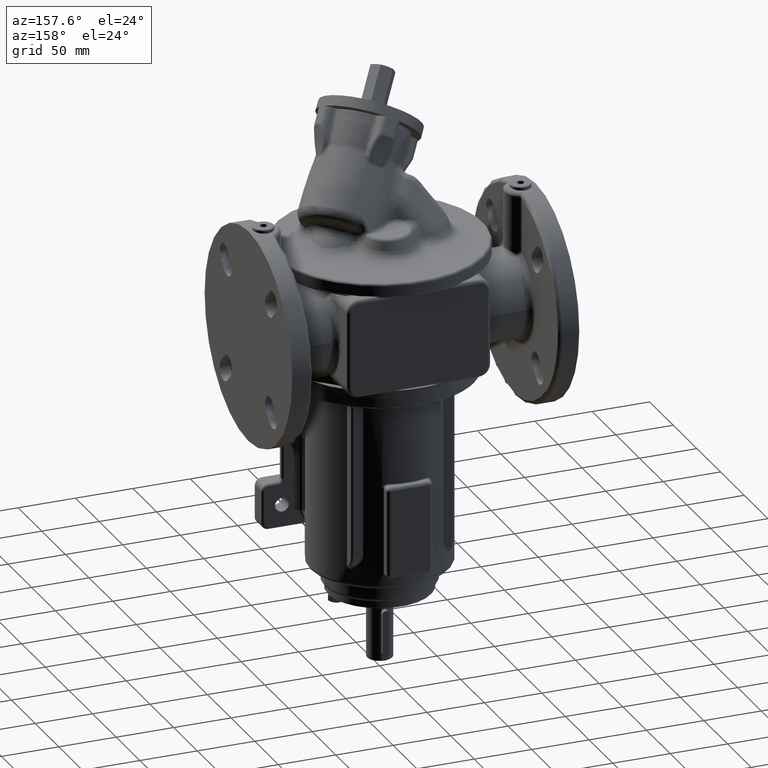
[diagram: clean part render]
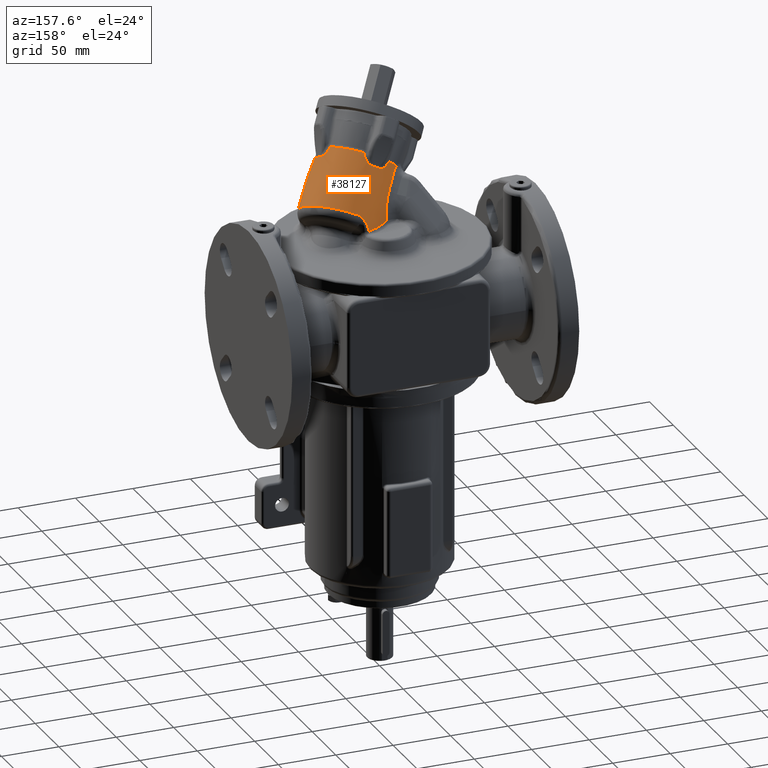
[diagram: same view with one face highlighted and labeled with its STEP entity id]
A machine part, auxiliary view. The second image highlights one B-rep face of the part: STEP entity #38127.
In plain terms, the highlighted face is a freeform B-spline surface patch.
Its self-contained STEP definition (entity closure, byte-faithful):
#8737=CARTESIAN_POINT('',(3.646461553759E1,-5.455590944488E1,1.109942116374E2));
#8917=CARTESIAN_POINT('',(1.666856467833E1,1.869160762320E1,1.210457124241E2));
#8918=CARTESIAN_POINT('',(1.447437237083E1,1.790486879281E1,1.211193830746E2));
#8919=CARTESIAN_POINT('',(1.007537076605E1,1.600286412070E1,1.212743986511E2));
#8920=CARTESIAN_POINT('',(3.518807458040E0,1.209471816001E1,1.215300415821E2));
#8921=CARTESIAN_POINT('',(-5.949556097955E-1,8.870211122148E0,
1.217088646899E2));
#8922=CARTESIAN_POINT('',(-2.575595980791E0,7.102237839542E0,1.218003247988E2));
#8924=CARTESIAN_POINT('',(2.219368446794E1,1.416609628976E1,1.336156532342E2));
#8925=CARTESIAN_POINT('',(2.137760629514E1,1.468744775987E1,1.325668558217E2));
#8926=CARTESIAN_POINT('',(1.988606172394E1,1.558878480981E1,1.304662611576E2));
#8927=CARTESIAN_POINT('',(1.830612020984E1,1.668118921436E1,1.274058092380E2));
#8928=CARTESIAN_POINT('',(1.718711898824E1,1.771708156859E1,1.241803338565E2));
#8929=CARTESIAN_POINT('',(1.678909811453E1,1.836409956260E1,1.220856421201E2));
#8930=CARTESIAN_POINT('',(1.666856467833E1,1.869160762320E1,1.210457124241E2));
#8932=CARTESIAN_POINT('',(2.449325583177E1,-1.860660171780E1,1.155349372192E2));
#8933=DIRECTION('',(4.545194776720E-1,4.545194776720E-1,-7.660444431190E-1));
#8934=DIRECTION('',(-6.132199325385E-2,8.739386493263E-1,4.821523103305E-1));
#8935=AXIS2_PLACEMENT_3D('',#8932,#8933,#8934);
#8937=CARTESIAN_POINT('',(3.646461553759E1,-5.455590944488E1,1.109942116374E2));
#8938=CARTESIAN_POINT('',(3.755921496364E1,-5.404106876470E1,1.109456705314E2));
#8939=CARTESIAN_POINT('',(3.974479500061E1,-5.292736556521E1,1.108447205744E2));
#8940=CARTESIAN_POINT('',(4.300210295239E1,-5.099739202236E1,1.106808759050E2));
#8941=CARTESIAN_POINT('',(4.513238965E1,-4.954631654385E1,1.105638730959E2));
#8942=CARTESIAN_POINT('',(4.618548771682E1,-4.877910302998E1,1.105033131860E2));
#8944=CARTESIAN_POINT('',(3.886765728963E1,-5.414241312046E1,1.140506128707E2));
#8945=CARTESIAN_POINT('',(3.861148047915E1,-5.419878380648E1,1.136751714900E2));
#8946=CARTESIAN_POINT('',(3.809020939777E1,-5.430432040008E1,1.129486482471E2));
#8947=CARTESIAN_POINT('',(3.728441019355E1,-5.444151421669E1,1.119261099968E2));
#8948=CARTESIAN_POINT('',(3.673886001376E1,-5.451987153103E1,1.112969517378E2));
#8949=CARTESIAN_POINT('',(3.646461553759E1,-5.455590944488E1,1.109942116374E2));
#8951=CARTESIAN_POINT('',(7.815687657964E0,-5.850896127023E1,1.118760501433E2));
#8952=CARTESIAN_POINT('',(7.519016528116E0,-5.882339018356E1,1.124720463029E2));
#8953=CARTESIAN_POINT('',(7.052072488049E0,-5.950940437002E1,1.137126507951E2));
#8954=CARTESIAN_POINT('',(6.778192496166E0,-6.074205844582E1,1.157793544601E2));
#8955=CARTESIAN_POINT('',(7.002877465615E0,-6.210282346207E1,1.179723371877E2));
#8956=CARTESIAN_POINT('',(7.809782403072E0,-6.358104667562E1,1.203722241295E2));
#8957=CARTESIAN_POINT('',(9.298997538275E0,-6.504577407807E1,1.229446433083E2));
#8958=CARTESIAN_POINT('',(1.144601976437E1,-6.628416863597E1,1.255715610186E2));
#8959=CARTESIAN_POINT('',(1.418166473670E1,-6.710774887260E1,1.281773756386E2));
#8960=CARTESIAN_POINT('',(1.719122506162E1,-6.735867827285E1,1.305252631033E2));
#8961=CARTESIAN_POINT('',(2.028538713723E1,-6.707011505470E1,1.325572583094E2));
#8962=CARTESIAN_POINT('',(2.360057456704E1,-6.621777288852E1,1.343625214680E2));
#8963=CARTESIAN_POINT('',(2.692754178523E1,-6.482115593152E1,1.35755515E2));
#8964=CARTESIAN_POINT('',(3.000582502116E1,-6.307784267812E1,1.365698910089E2));
#8965=CARTESIAN_POINT('',(3.275718361980E1,-6.118716225852E1,1.367838502741E2));
#8966=CARTESIAN_POINT('',(3.507984823917E1,-5.938453616068E1,1.364420142408E2));
#8967=CARTESIAN_POINT('',(3.700441038121E1,-5.778819378212E1,1.356524547928E2));
#8968=CARTESIAN_POINT('',(3.860782656926E1,-5.641973764884E1,1.344866564856E2));
#8969=CARTESIAN_POINT('',(3.992885022472E1,-5.529134629084E1,1.329916002475E2));
#8970=CARTESIAN_POINT('',(4.098948644569E1,-5.440162468701E1,1.311813214574E2));
#8971=CARTESIAN_POINT('',(4.178487532130E1,-5.374989774541E1,1.290354973243E2));
#8972=CARTESIAN_POINT('',(4.226398028502E1,-5.334993400121E1,1.265311043632E2));
#8973=CARTESIAN_POINT('',(4.233110510328E1,-5.321699945459E1,1.236603961767E2));
#8974=CARTESIAN_POINT('',(4.186425543919E1,-5.334369555582E1,1.205012708647E2));
#8975=CARTESIAN_POINT('',(4.076351077359E1,-5.368257091819E1,1.172460080137E2));
#8976=CARTESIAN_POINT('',(3.958695536813E1,-5.398403607341E1,1.151043563939E2));
#8977=CARTESIAN_POINT('',(3.886765728963E1,-5.414241312046E1,1.140506128707E2));
#8979=CARTESIAN_POINT('',(-9.252060906406E0,-4.809531043889E1,
1.119563967735E2));
#8980=CARTESIAN_POINT('',(-8.431839084827E0,-4.911703895614E1,
1.119694110253E2));
#8981=CARTESIAN_POINT('',(-6.657048959283E0,-5.104332029659E1,
1.119888188168E2));
#8982=CARTESIAN_POINT('',(-3.628196616424E0,-5.354450702774E1,
1.119964868063E2));
#8983=CARTESIAN_POINT('',(-2.226072294077E-1,-5.565608685929E1,
1.119819952700E2));
#8984=CARTESIAN_POINT('',(3.564355647576E0,-5.735165374350E1,1.119439846335E2));
#8985=CARTESIAN_POINT('',(6.358473140229E0,-5.818068409377E1,1.119016668620E2));
#8986=CARTESIAN_POINT('',(7.815687657964E0,-5.850896127023E1,1.118760501433E2));
#8988=CARTESIAN_POINT('',(-9.252060906406E0,-4.809531043889E1,
1.119563967735E2));
#8989=CARTESIAN_POINT('',(-1.073974542043E1,-4.774142980612E1,
1.132260360210E2));
#8990=CARTESIAN_POINT('',(-1.375997383393E1,-4.704856558889E1,
1.160933951775E2));
#8991=CARTESIAN_POINT('',(-1.829844731862E1,-4.609661521749E1,
1.213791315772E2));
#8992=CARTESIAN_POINT('',(-2.130564797531E1,-4.553828044280E1,
1.256361004374E2));
#8993=CARTESIAN_POINT('',(-2.277781534571E1,-4.528794541283E1,
1.279448325351E2));
#8995=CARTESIAN_POINT('',(-2.590636569277E1,-4.896333462360E1,
1.351091924176E2));
#8996=CARTESIAN_POINT('',(-2.566789654754E1,-4.853577126282E1,
1.344708088357E2));
#8997=CARTESIAN_POINT('',(-2.525087722982E1,-4.765468250883E1,
1.332951687021E2));
#8998=CARTESIAN_POINT('',(-2.478892504892E1,-4.626960537435E1,
1.318206672727E2));
#8999=CARTESIAN_POINT('',(-2.458791140047E1,-4.532181862788E1,
1.310429325454E2));
#9000=CARTESIAN_POINT('',(-2.451356740851E1,-4.483930243416E1,
1.307064087144E2));
#9002=CARTESIAN_POINT('',(9.945563389318E-1,-4.210530121064E1,
1.551395065530E2));
#9003=DIRECTION('',(4.545194776720E-1,4.545194776720E-1,-7.660444431190E-1));
#9004=DIRECTION('',(-2.013282460817E-1,-7.853347407888E-1,-5.854197487613E-1));
#9005=AXIS2_PLACEMENT_3D('',#9002,#9003,#9004);
#9007=CARTESIAN_POINT('',(2.623792617059E0,-6.781296717650E1,1.296008169009E2));
#9008=CARTESIAN_POINT('',(2.414869143442E0,-6.774379909827E1,1.295178540029E2));
#9009=CARTESIAN_POINT('',(1.959250450485E0,-6.762175174427E1,1.294029570750E2));
#9010=CARTESIAN_POINT('',(1.124865393666E0,-6.749316714653E1,1.294122011917E2));
#9011=CARTESIAN_POINT('',(2.038643963575E-1,-6.744005114708E1,
1.296274979066E2));
#9012=CARTESIAN_POINT('',(-7.742784548292E-1,-6.746536672442E1,
1.300418776965E2));
#9013=CARTESIAN_POINT('',(-1.787085862939E0,-6.757311057346E1,
1.306505082414E2));
#9014=CARTESIAN_POINT('',(-2.820381388457E0,-6.776798148779E1,
1.314513387503E2));
#9015=CARTESIAN_POINT('',(-3.861141259590E0,-6.805792789757E1,
1.324480055276E2));
#9016=CARTESIAN_POINT('',(-4.894904455230E0,-6.845323092384E1,
1.336472312683E2));
#9017=CARTESIAN_POINT('',(-5.568822872385E0,-6.879612390256E1,
1.345900283118E2));
#9018=CARTESIAN_POINT('',(-5.897548411112E0,-6.898974951312E1,
1.350987485095E2));
#9020=CARTESIAN_POINT('',(4.912356862882E0,-3.818750068669E1,1.485364686898E2));
#9021=DIRECTION('',(4.545194776720E-1,4.545194776720E-1,-7.660444431190E-1));
#9022=DIRECTION('',(2.940235728310E-1,-8.883655007906E-1,-3.526427024977E-1));
#9023=AXIS2_PLACEMENT_3D('',#9020,#9021,#9022);
#9025=CARTESIAN_POINT('',(1.538311175540E1,-7.180887901054E1,1.460525946332E2));
#9026=CARTESIAN_POINT('',(1.564695688699E1,-7.160719404621E1,1.455120006979E2));
#9027=CARTESIAN_POINT('',(1.609684355052E1,-7.123543376003E1,1.444563949523E2));
#9028=CARTESIAN_POINT('',(1.656265561687E1,-7.076539832849E1,1.429670281652E2));
#9029=CARTESIAN_POINT('',(1.684085390982E1,-7.037438004774E1,1.415783237527E2));
#9030=CARTESIAN_POINT('',(1.694675160490E1,-7.005612301353E1,1.402989437327E2));
#9031=CARTESIAN_POINT('',(1.689150278053E1,-6.980630526193E1,1.391386031903E2));
#9032=CARTESIAN_POINT('',(1.668229169696E1,-6.962324222686E1,1.381112199202E2));
#9033=CARTESIAN_POINT('',(1.632879235660E1,-6.950729772041E1,1.372388155220E2));
#9034=CARTESIAN_POINT('',(1.584260268159E1,-6.946085658558E1,1.365492019516E2));
#9035=CARTESIAN_POINT('',(1.547000672978E1,-6.947323839330E1,1.362377465876E2));
#9036=CARTESIAN_POINT('',(1.527211273536E1,-6.948854734507E1,1.361113085590E2));
#9038=CARTESIAN_POINT('',(3.628673378031E1,-4.558343288473E1,1.627636721726E2));
#9039=CARTESIAN_POINT('',(3.629402915092E1,-4.586171458360E1,1.626029212757E2));
#9040=CARTESIAN_POINT('',(3.625852070669E1,-4.647076480998E1,1.623227206991E2));
#9041=CARTESIAN_POINT('',(3.603834084075E1,-4.756032693389E1,1.620293250772E2));
#9042=CARTESIAN_POINT('',(3.564215980769E1,-4.877966931202E1,1.618947021524E2));
#9043=CARTESIAN_POINT('',(3.506341844966E1,-5.010622951303E1,1.619407677953E2));
#9044=CARTESIAN_POINT('',(3.429691997878E1,-5.151453024624E1,1.621958762116E2));
#9045=CARTESIAN_POINT('',(3.333980106246E1,-5.297996487271E1,1.626918135648E2));
#9046=CARTESIAN_POINT('',(3.219185992027E1,-5.447615636030E1,1.634649491889E2));
#9047=CARTESIAN_POINT('',(3.130182631786E1,-5.547416185877E1,1.641915468005E2));
#9048=CARTESIAN_POINT('',(3.082675475590E1,-5.596749194186E1,1.646150332717E2));
#9050=CARTESIAN_POINT('',(4.912356862882E0,-3.818750068669E1,1.485364686898E2));
#9051=DIRECTION('',(4.545194776720E-1,4.545194776720E-1,-7.660444431190E-1));
#9052=DIRECTION('',(8.656508650636E-1,-2.273162304658E-2,5.001318357476E-1));
#9053=AXIS2_PLACEMENT_3D('',#9050,#9051,#9052);
#9055=CARTESIAN_POINT('',(2.815415062760E1,-3.579308247225E1,1.749994409424E2));
#9056=CARTESIAN_POINT('',(2.867460720279E1,-3.563052214946E1,1.744037285443E2));
#9057=CARTESIAN_POINT('',(2.967171735981E1,-3.542154214851E1,1.732680609878E2));
#9058=CARTESIAN_POINT('',(3.101671271507E1,-3.540185257149E1,1.717335772822E2));
#9059=CARTESIAN_POINT('',(3.219833519272E1,-3.562731470745E1,1.703670833938E2));
#9060=CARTESIAN_POINT('',(3.320709868832E1,-3.605345612133E1,1.691688669348E2));
#9061=CARTESIAN_POINT('',(3.403777215854E1,-3.663981034166E1,1.681399273990E2));
#9062=CARTESIAN_POINT('',(3.468749846730E1,-3.734783745406E1,1.672843364274E2));
#9063=CARTESIAN_POINT('',(3.515606855542E1,-3.814552221348E1,1.666077674433E2));
#9064=CARTESIAN_POINT('',(3.534569812918E1,-3.870279380626E1,1.662879158505E2));
#9065=CARTESIAN_POINT('',(3.541306461305E1,-3.898842880770E1,1.661583299824E2));
#9067=CARTESIAN_POINT('',(4.111429116645E0,-7.686792631219E0,1.661583296001E2));
#9068=CARTESIAN_POINT('',(4.397177566185E0,-7.754160082971E0,1.662879192923E2));
#9069=CARTESIAN_POINT('',(4.954899545327E0,-7.943897112394E0,1.666079973138E2));
#9070=CARTESIAN_POINT('',(5.754260135866E0,-8.413926724434E0,1.672865298598E2));
#9071=CARTESIAN_POINT('',(6.462925828911E0,-9.065070279875E0,1.681437433963E2));
#9072=CARTESIAN_POINT('',(7.048904579366E0,-9.897159834047E0,1.691741957282E2));
#9073=CARTESIAN_POINT('',(7.474079646896E0,-1.090670438853E1,1.703731367003E2));
#9074=CARTESIAN_POINT('',(7.698328135047E0,-1.208811755576E1,1.717392760372E2));
#9075=CARTESIAN_POINT('',(7.677721577349E0,-1.343182450542E1,1.732722422139E2));
#9076=CARTESIAN_POINT('',(7.468909905360E0,-1.442663849952E1,1.744053391089E2));
#9077=CARTESIAN_POINT('',(7.306791820941E0,-1.494569855328E1,1.749994530622E2));
#9079=CARTESIAN_POINT('',(4.912356862882E0,-3.818750068669E1,1.485364686898E2));
#9080=DIRECTION('',(4.545194776720E-1,4.545194776720E-1,-7.660444431190E-1));
#9081=DIRECTION('',(-2.099061372694E-1,8.904466932519E-1,4.037871964457E-1));
#9082=AXIS2_PLACEMENT_3D('',#9079,#9080,#9081);
#9084=CARTESIAN_POINT('',(-1.313318464755E1,-1.253229953829E1,
1.648493794256E2));
#9085=CARTESIAN_POINT('',(-1.263008786600E1,-1.203454551782E1,
1.643930314261E2));
#9086=CARTESIAN_POINT('',(-1.160947584044E1,-1.110159101094E1,
1.636096776239E2));
#9087=CARTESIAN_POINT('',(-1.007519774268E1,-9.898406730440E0,
1.627744227239E2));
#9088=CARTESIAN_POINT('',(-8.569598495292E0,-8.895181800209E0,
1.622350650020E2));
#9089=CARTESIAN_POINT('',(-7.121899600545E0,-8.092414673612E0,
1.619521768452E2));
#9090=CARTESIAN_POINT('',(-5.758509465853E0,-7.486849405047E0,
1.618906155038E2));
#9091=CARTESIAN_POINT('',(-4.506684325538E0,-7.072902886988E0,
1.620195527363E2));
#9092=CARTESIAN_POINT('',(-3.390422308121E0,-6.842948862526E0,
1.623143727643E2));
#9093=CARTESIAN_POINT('',(-2.767738041985E0,-6.805690759065E0,
1.625995636340E2));
#9094=CARTESIAN_POINT('',(-2.483575075894E0,-6.813124204037E0,
1.627636730662E2));
#9096=CARTESIAN_POINT('',(-2.126746784725E1,-1.630145635938E1,
1.577858644821E2));
#9097=CARTESIAN_POINT('',(-2.067978662305E1,-1.565608339142E1,
1.575475514644E2));
#9098=CARTESIAN_POINT('',(-1.954613423314E1,-1.441549114105E1,
1.569491242557E2));
#9099=CARTESIAN_POINT('',(-1.796372235695E1,-1.263556253308E1,
1.556587113146E2));
#9100=CARTESIAN_POINT('',(-1.707534339094E1,-1.157138832013E1,
1.545985996343E2));
#9101=CARTESIAN_POINT('',(-1.666870398890E1,-1.106070802790E1,
1.540138992472E2));
#9103=CARTESIAN_POINT('',(-1.666870398890E1,-1.106070802790E1,
1.540138992472E2));
#9104=CARTESIAN_POINT('',(-1.589808817266E1,-1.009312614135E1,
1.529064888603E2));
#9105=CARTESIAN_POINT('',(-1.434389436345E1,-8.185111399849E0,
1.507175785391E2));
#9106=CARTESIAN_POINT('',(-1.196784494630E1,-5.395944639381E0,
1.475020618967E2));
#9107=CARTESIAN_POINT('',(-1.037062611222E1,-3.602787801992E0,
1.454241627595E2));
#9108=CARTESIAN_POINT('',(-9.567951936210E0,-2.721241009411E0,
1.443999377488E2));
#9110=CARTESIAN_POINT('',(-9.567951936210E0,-2.721241009411E0,
1.443999377488E2));
#9111=CARTESIAN_POINT('',(-8.747634658124E0,-1.820240587587E0,
1.433529353100E2));
#9112=CARTESIAN_POINT('',(-7.253142041559E0,-1.083473506011E-1,
1.410800502462E2));
#9113=CARTESIAN_POINT('',(-5.486336937975E0,2.200349239168E0,1.370752887718E2));
#9114=CARTESIAN_POINT('',(-4.245026859432E0,4.164311665543E0,1.325002843360E2));
#9115=CARTESIAN_POINT('',(-3.762078716356E0,5.167518687147E0,1.291043836980E2));
#9116=CARTESIAN_POINT('',(-3.599032446378E0,5.568385187374E0,1.273116018524E2));
#9118=CARTESIAN_POINT('',(-3.599032446378E0,5.568385187374E0,1.273116018524E2));
#9119=CARTESIAN_POINT('',(-3.586788850145E0,5.598470889790E0,1.271770983981E2));
#9120=CARTESIAN_POINT('',(-3.555546128378E0,5.664025019295E0,1.269055585624E2));
#9121=CARTESIAN_POINT('',(-3.490641912760E0,5.776959865643E0,1.264895692459E2));
#9122=CARTESIAN_POINT('',(-3.436333452906E0,5.861142330954E0,1.262072394813E2));
#9123=CARTESIAN_POINT('',(-3.406502009263E0,5.905433253602E0,1.260646950562E2));
#9125=CARTESIAN_POINT('',(-3.406502009263E0,5.905433253602E0,1.260646950562E2));
#9126=CARTESIAN_POINT('',(-3.306453053784E0,6.053972466436E0,1.255866621046E2));
#9127=CARTESIAN_POINT('',(-3.111799482703E0,6.340669952902E0,1.246332903861E2));
#9128=CARTESIAN_POINT('',(-2.835236454410E0,6.739625686029E0,1.232115265740E2));
#9129=CARTESIAN_POINT('',(-2.660591640635E0,6.984833298134E0,1.222697088632E2));
#9130=CARTESIAN_POINT('',(-2.575595980791E0,7.102237839542E0,1.218003247988E2));
#9191=CARTESIAN_POINT('',(-2.575595980791E0,7.102237839542E0,1.218003247988E2));
#9231=CARTESIAN_POINT('',(-2.126746784725E1,-1.630145635938E1,
1.577858644821E2));
#9378=CARTESIAN_POINT('',(8.045611760543E-1,-4.229529637351E1,
1.554597232783E2));
#9379=DIRECTION('',(4.545194776720E-1,4.545194776720E-1,-7.660444431190E-1));
#9380=DIRECTION('',(-6.457708074426E-1,7.604912175717E-1,6.806740961123E-2));
#9381=AXIS2_PLACEMENT_3D('',#9378,#9379,#9380);
#9493=CARTESIAN_POINT('',(7.306791820941E0,-1.494569855328E1,1.749994530622E2));
#9500=CARTESIAN_POINT('',(9.945552260218E-1,-4.210530232355E1,
1.551395084287E2));
#9501=DIRECTION('',(4.545194776720E-1,4.545194776720E-1,-7.660444431190E-1));
#9502=DIRECTION('',(1.843895189573E-1,7.933724517725E-1,5.801384818017E-1));
#9503=AXIS2_PLACEMENT_3D('',#9500,#9501,#9502);
#9671=CARTESIAN_POINT('',(3.082675475590E1,-5.596749194186E1,1.646150332717E2));
#9678=CARTESIAN_POINT('',(9.945552663396E-1,-4.210530228323E1,
1.551395083607E2));
#9679=DIRECTION('',(4.545194776720E-1,4.545194776720E-1,-7.660444431190E-1));
#9680=DIRECTION('',(8.714427765475E-1,-4.049348972344E-1,2.767945378887E-1));
#9681=AXIS2_PLACEMENT_3D('',#9678,#9679,#9680);
#9850=CARTESIAN_POINT('',(-5.897548411112E0,-6.898974951312E1,
1.350987485095E2));
#9921=CARTESIAN_POINT('',(-2.451356740851E1,-4.483930243416E1,
1.307064087144E2));
#9931=CARTESIAN_POINT('',(-2.451356740851E1,-4.483930243416E1,
1.307064087144E2));
#9932=CARTESIAN_POINT('',(-2.432422678927E1,-4.490584503005E1,
1.303994520954E2));
#9933=CARTESIAN_POINT('',(-2.394279086745E1,-4.502771399453E1,
1.297858535810E2));
#9934=CARTESIAN_POINT('',(-2.336342638645E1,-4.517711648014E1,
1.288653320109E2));
#9935=CARTESIAN_POINT('',(-2.297352728126E1,-4.525464139502E1,
1.282517402041E2));
#9936=CARTESIAN_POINT('',(-2.277781534571E1,-4.528794541283E1,
1.279448325351E2));
#10234=CARTESIAN_POINT('',(4.618548771682E1,-4.877910302998E1,
1.105033131860E2));
#12663=CARTESIAN_POINT('',(-9.252060906406E0,-4.809531043889E1,
1.119563967735E2));
#16053=VERTEX_POINT('',#9118);
#16054=VERTEX_POINT('',#9123);
#16055=VERTEX_POINT('',#9110);
#16056=VERTEX_POINT('',#9103);
#16057=CARTESIAN_POINT('',(-2.277780896684E1,-4.528794363486E1,
1.279448359841E2));
#16058=VERTEX_POINT('',#16057);
#16061=VERTEX_POINT('',#10234);
#16089=VERTEX_POINT('',#12663);
#16094=VERTEX_POINT('',#8737);
#16098=VERTEX_POINT('',#8944);
#16099=VERTEX_POINT('',#8951);
#16111=VERTEX_POINT('',#9231);
#16177=VERTEX_POINT('',#9493);
#16179=VERTEX_POINT('',#9067);
#16182=CARTESIAN_POINT('',(-2.483565050412E0,-6.813124039517E0,
1.627636781147E2));
#16183=VERTEX_POINT('',#16182);
#16185=VERTEX_POINT('',#9084);
#16213=VERTEX_POINT('',#9921);
#16215=VERTEX_POINT('',#8995);
#16232=VERTEX_POINT('',#9850);
#16235=VERTEX_POINT('',#9007);
#16238=CARTESIAN_POINT('',(1.527210819562E1,-6.948854771553E1,
1.361113060676E2));
#16239=VERTEX_POINT('',#16238);
#16241=VERTEX_POINT('',#9025);
#16259=VERTEX_POINT('',#9671);
#16261=VERTEX_POINT('',#9038);
#16264=CARTESIAN_POINT('',(3.541306677767E1,-3.898843633917E1,
1.661583260193E2));
#16265=VERTEX_POINT('',#16264);
#16267=VERTEX_POINT('',#9055);
#16359=VERTEX_POINT('',#9191);
#16375=VERTEX_POINT('',#8917);
#16376=CARTESIAN_POINT('',(2.219368108475E1,1.416609763194E1,1.336156488566E2));
#16377=VERTEX_POINT('',#16376);
#38043=CARTESIAN_POINT('',(-2.202597519039E0,-1.629117217452E1,
8.748890509643E1));
#38044=CARTESIAN_POINT('',(-1.234339805382E1,-2.601275406237E1,
1.035247218020E2));
#38045=CARTESIAN_POINT('',(-2.108004996095E1,-3.561708353008E1,
1.204338961234E2));
#38046=CARTESIAN_POINT('',(-2.835972617730E1,-4.504608701302E1,
1.381141850013E2));
#38047=CARTESIAN_POINT('',(1.215932478274E1,-5.973873097463E1,
7.023143599300E1));
#38048=CARTESIAN_POINT('',(2.226056801992E0,-7.008813848740E1,
8.601787893339E1));
#38049=CARTESIAN_POINT('',(-6.940135493046E0,-7.839302621824E1,
1.034431944661E2));
#38050=CARTESIAN_POINT('',(-1.528382777916E1,-8.460317781045E1,
1.224020186308E2));
#38051=CARTESIAN_POINT('',(5.553692704162E1,-6.716565473335E1,
9.156216133228E1));
#38052=CARTESIAN_POINT('',(4.623047380025E1,-7.762238273037E1,
1.076568373780E2));
#38053=CARTESIAN_POINT('',(3.576693204813E1,-8.570514394880E1,
1.244441876129E2));
#38054=CARTESIAN_POINT('',(2.420957066525E1,-9.136506514273E1,
1.418227055997E2));
#38055=CARTESIAN_POINT('',(6.212418719112E1,-2.730492353022E1,
1.191212892108E2));
#38056=CARTESIAN_POINT('',(5.291292113250E1,-3.718565625458E1,
1.356141999826E2));
#38057=CARTESIAN_POINT('',(4.225236576198E1,-4.646058336721E1,
1.515773041153E2));
#38058=CARTESIAN_POINT('',(3.020698122262E1,-5.507362306866E1,
1.669140790599E2));
#38059=CARTESIAN_POINT('',(6.871144734061E1,1.255580767291E1,1.466804170892E2));
#38060=CARTESIAN_POINT('',(5.959536846475E1,3.251070221202E0,1.635715625873E2));
#38061=CARTESIAN_POINT('',(4.873779947583E1,-7.216022785624E0,
1.787104206176E2));
#38062=CARTESIAN_POINT('',(3.620439177999E1,-1.878218099458E1,
1.920054525201E2));
#38063=CARTESIAN_POINT('',(2.851515773018E1,3.923344348417E1,1.386593531434E2));
#38064=CARTESIAN_POINT('',(1.881823469780E1,3.031420302785E1,1.554345927166E2));
#38065=CARTESIAN_POINT('',(9.162867577751E0,1.904922782991E1,1.708133469702E2));
#38066=CARTESIAN_POINT('',(-3.925614609238E-1,5.506632719953E0,
1.847026266868E2));
#38067=CARTESIAN_POINT('',(2.515127831741E0,1.225665770162E1,1.072264580831E2));
#38068=CARTESIAN_POINT('',(-7.557500659586E0,2.947597474986E0,
1.235474862454E2));
#38069=CARTESIAN_POINT('',(-1.643525161562E1,-7.510548470854E0,
1.398663443133E2));
#38070=CARTESIAN_POINT('',(-2.406444480334E1,-1.905454388223E1,
1.560843586353E2));
#38071=(BOUNDED_SURFACE()B_SPLINE_SURFACE(3,3,((#38043,#38044,#38045,#38046),(
#38047,#38048,#38049,#38050),(#38051,#38052,#38053,#38054),(#38055,#38056,
#38057,#38058),(#38059,#38060,#38061,#38062),(#38063,#38064,#38065,#38066),(
#38067,#38068,#38069,#38070)),.UNSPECIFIED.,.F.,.F.,.F.)B_SPLINE_SURFACE_WITH_KNOTS((4,3,4),(4,4),(0.E0,1.E0,2.E0),(0.E0,1.E0),.UNSPECIFIED.)GEOMETRIC_REPRESENTATION_ITEM()RATIONAL_B_SPLINE_SURFACE(((1.613426324963E0,1.610174408964E0,
1.610174408964E0,1.613426324963E0),(7.975431439801E-1,7.959356684670E-1,
7.959356684670E-1,7.975431439801E-1),(7.975431439802E-1,7.959356684670E-1,
7.959356684670E-1,7.975431439802E-1),(1.613426324963E0,1.610174408964E0,
1.610174408964E0,1.613426324963E0),(7.975431439802E-1,7.959356684670E-1,
7.959356684670E-1,7.975431439802E-1),(7.975431439801E-1,7.959356684670E-1,
7.959356684670E-1,7.975431439801E-1),(1.613426324963E0,1.610174408964E0,
1.610174408964E0,1.613426324963E0)))REPRESENTATION_ITEM('')SURFACE());
#38073=ORIENTED_EDGE('',*,*,#38072,.F.);
#38075=ORIENTED_EDGE('',*,*,#38074,.F.);
#38077=ORIENTED_EDGE('',*,*,#38076,.T.);
#38078=ORIENTED_EDGE('',*,*,#37359,.F.);
#38080=ORIENTED_EDGE('',*,*,#38079,.F.);
#38081=ORIENTED_EDGE('',*,*,#38033,.F.);
#38082=ORIENTED_EDGE('',*,*,#37857,.F.);
#38084=ORIENTED_EDGE('',*,*,#38083,.T.);
#38086=ORIENTED_EDGE('',*,*,#38085,.F.);
#38088=ORIENTED_EDGE('',*,*,#38087,.F.);
#38090=ORIENTED_EDGE('',*,*,#38089,.F.);
#38092=ORIENTED_EDGE('',*,*,#38091,.F.);
#38094=ORIENTED_EDGE('',*,*,#38093,.F.);
#38096=ORIENTED_EDGE('',*,*,#38095,.F.);
#38098=ORIENTED_EDGE('',*,*,#38097,.F.);
#38100=ORIENTED_EDGE('',*,*,#38099,.F.);
#38102=ORIENTED_EDGE('',*,*,#38101,.F.);
#38104=ORIENTED_EDGE('',*,*,#38103,.F.);
#38106=ORIENTED_EDGE('',*,*,#38105,.F.);
#38108=ORIENTED_EDGE('',*,*,#38107,.F.);
#38110=ORIENTED_EDGE('',*,*,#38109,.F.);
#38112=ORIENTED_EDGE('',*,*,#38111,.F.);
#38114=ORIENTED_EDGE('',*,*,#38113,.F.);
#38116=ORIENTED_EDGE('',*,*,#38115,.T.);
#38118=ORIENTED_EDGE('',*,*,#38117,.T.);
#38120=ORIENTED_EDGE('',*,*,#38119,.T.);
#38122=ORIENTED_EDGE('',*,*,#38121,.T.);
#38124=ORIENTED_EDGE('',*,*,#38123,.T.);
#38125=EDGE_LOOP('',(#38073,#38075,#38077,#38078,#38080,#38081,#38082,#38084,
#38086,#38088,#38090,#38092,#38094,#38096,#38098,#38100,#38102,#38104,#38106,
#38108,#38110,#38112,#38114,#38116,#38118,#38120,#38122,#38124));
#38126=FACE_OUTER_BOUND('',#38125,.F.);
#38127=ADVANCED_FACE('',(#38126),#38071,.T.);
#8923=B_SPLINE_CURVE_WITH_KNOTS('',3,(#8917,#8918,#8919,#8920,#8921,#8922),
.UNSPECIFIED.,.F.,.F.,(4,1,1,4),(0.E0,3.333333333333E-1,6.666666666667E-1,1.E0),
.UNSPECIFIED.);
#8931=B_SPLINE_CURVE_WITH_KNOTS('',3,(#8924,#8925,#8926,#8927,#8928,#8929,
#8930),.UNSPECIFIED.,.F.,.F.,(4,1,1,1,4),(0.E0,2.5E-1,5.E-1,7.5E-1,1.E0),
.UNSPECIFIED.);
#8936=CIRCLE('',#8935,3.75E1);
#8943=B_SPLINE_CURVE_WITH_KNOTS('',3,(#8937,#8938,#8939,#8940,#8941,#8942),
.UNSPECIFIED.,.F.,.F.,(4,1,1,4),(0.E0,3.333333333333E-1,6.666666666667E-1,1.E0),
.UNSPECIFIED.);
#8950=B_SPLINE_CURVE_WITH_KNOTS('',3,(#8944,#8945,#8946,#8947,#8948,#8949),
.UNSPECIFIED.,.F.,.F.,(4,1,1,4),(0.E0,3.333333333333E-1,6.666666666667E-1,1.E0),
.UNSPECIFIED.);
#8978=B_SPLINE_CURVE_WITH_KNOTS('',3,(#8951,#8952,#8953,#8954,#8955,#8956,#8957,
#8958,#8959,#8960,#8961,#8962,#8963,#8964,#8965,#8966,#8967,#8968,#8969,#8970,
#8971,#8972,#8973,#8974,#8975,#8976,#8977),.UNSPECIFIED.,.F.,.F.,(4,1,1,1,1,1,1,
1,1,1,1,1,1,1,1,1,1,1,1,1,1,1,1,1,4),(0.E0,4.166666666667E-2,8.333333333333E-2,
1.25E-1,1.666666666667E-1,2.083333333333E-1,2.5E-1,2.916666666667E-1,
3.333333333333E-1,3.75E-1,4.166666666667E-1,4.583333333333E-1,5.E-1,
5.416666666667E-1,5.833333333333E-1,6.25E-1,6.666666666667E-1,7.083333333333E-1,
7.5E-1,7.916666666667E-1,8.333333333333E-1,8.75E-1,9.166666666667E-1,
9.583333333333E-1,1.E0),.UNSPECIFIED.);
#8987=B_SPLINE_CURVE_WITH_KNOTS('',3,(#8979,#8980,#8981,#8982,#8983,#8984,#8985,
#8986),.UNSPECIFIED.,.F.,.F.,(4,1,1,1,1,4),(0.E0,2.E-1,4.E-1,6.E-1,8.E-1,1.E0),
.UNSPECIFIED.);
#8994=B_SPLINE_CURVE_WITH_KNOTS('',3,(#8988,#8989,#8990,#8991,#8992,#8993),
.UNSPECIFIED.,.F.,.F.,(4,1,1,4),(0.E0,3.333333333333E-1,6.666666666667E-1,1.E0),
.UNSPECIFIED.);
#9001=B_SPLINE_CURVE_WITH_KNOTS('',3,(#8995,#8996,#8997,#8998,#8999,#9000),
.UNSPECIFIED.,.F.,.F.,(4,1,1,4),(0.E0,3.333333333333E-1,6.666666666667E-1,1.E0),
.UNSPECIFIED.);
#9006=CIRCLE('',#9005,3.423312785755E1);
#9019=B_SPLINE_CURVE_WITH_KNOTS('',3,(#9007,#9008,#9009,#9010,#9011,#9012,#9013,
#9014,#9015,#9016,#9017,#9018),.UNSPECIFIED.,.F.,.F.,(4,1,1,1,1,1,1,1,1,4),
(0.E0,1.111111111111E-1,2.222222222222E-1,3.333333333333E-1,4.444444444444E-1,
5.555555555556E-1,6.666666666667E-1,7.777777777778E-1,8.888888888889E-1,1.E0),
.UNSPECIFIED.);
#9024=CIRCLE('',#9023,3.523442434560E1);
#9037=B_SPLINE_CURVE_WITH_KNOTS('',3,(#9025,#9026,#9027,#9028,#9029,#9030,#9031,
#9032,#9033,#9034,#9035,#9036),.UNSPECIFIED.,.F.,.F.,(4,1,1,1,1,1,1,1,1,4),
(0.E0,1.111111111111E-1,2.222222222222E-1,3.333333333333E-1,4.444444444444E-1,
5.555555555556E-1,6.666666666667E-1,7.777777777778E-1,8.888888888889E-1,1.E0),
.UNSPECIFIED.);
#9049=B_SPLINE_CURVE_WITH_KNOTS('',3,(#9038,#9039,#9040,#9041,#9042,#9043,#9044,
#9045,#9046,#9047,#9048),.UNSPECIFIED.,.F.,.F.,(4,1,1,1,1,1,1,1,4),(0.E0,
1.25E-1,2.5E-1,3.75E-1,5.E-1,6.25E-1,7.5E-1,8.75E-1,1.E0),.UNSPECIFIED.);
#9054=CIRCLE('',#9053,3.523442434560E1);
#9066=B_SPLINE_CURVE_WITH_KNOTS('',3,(#9055,#9056,#9057,#9058,#9059,#9060,#9061,
#9062,#9063,#9064,#9065),.UNSPECIFIED.,.F.,.F.,(4,1,1,1,1,1,1,1,4),(0.E0,
1.25E-1,2.5E-1,3.75E-1,5.E-1,6.25E-1,7.5E-1,8.75E-1,1.E0),.UNSPECIFIED.);
#9078=B_SPLINE_CURVE_WITH_KNOTS('',3,(#9067,#9068,#9069,#9070,#9071,#9072,#9073,
#9074,#9075,#9076,#9077),.UNSPECIFIED.,.F.,.F.,(4,1,1,1,1,1,1,1,4),(0.E0,
1.25E-1,2.5E-1,3.75E-1,5.E-1,6.25E-1,7.5E-1,8.75E-1,1.E0),.UNSPECIFIED.);
#9083=CIRCLE('',#9082,3.523442434560E1);
#9095=B_SPLINE_CURVE_WITH_KNOTS('',3,(#9084,#9085,#9086,#9087,#9088,#9089,#9090,
#9091,#9092,#9093,#9094),.UNSPECIFIED.,.F.,.F.,(4,1,1,1,1,1,1,1,4),(0.E0,
1.25E-1,2.5E-1,3.75E-1,5.E-1,6.25E-1,7.5E-1,8.75E-1,1.E0),.UNSPECIFIED.);
#9102=B_SPLINE_CURVE_WITH_KNOTS('',3,(#9096,#9097,#9098,#9099,#9100,#9101),
.UNSPECIFIED.,.F.,.F.,(4,1,1,4),(0.E0,3.333333333333E-1,6.666666666667E-1,1.E0),
.UNSPECIFIED.);
#9109=B_SPLINE_CURVE_WITH_KNOTS('',3,(#9103,#9104,#9105,#9106,#9107,#9108),
.UNSPECIFIED.,.F.,.F.,(4,1,1,4),(0.E0,3.333333333333E-1,6.666666666667E-1,1.E0),
.UNSPECIFIED.);
#9117=B_SPLINE_CURVE_WITH_KNOTS('',3,(#9110,#9111,#9112,#9113,#9114,#9115,
#9116),.UNSPECIFIED.,.F.,.F.,(4,1,1,1,4),(0.E0,2.5E-1,5.E-1,7.5E-1,1.E0),
.UNSPECIFIED.);
#9124=B_SPLINE_CURVE_WITH_KNOTS('',3,(#9118,#9119,#9120,#9121,#9122,#9123),
.UNSPECIFIED.,.F.,.F.,(4,1,1,4),(0.E0,3.333333333333E-1,6.666666666667E-1,1.E0),
.UNSPECIFIED.);
#9131=B_SPLINE_CURVE_WITH_KNOTS('',3,(#9125,#9126,#9127,#9128,#9129,#9130),
.UNSPECIFIED.,.F.,.F.,(4,1,1,4),(0.E0,3.333333333333E-1,6.666666666667E-1,1.E0),
.UNSPECIFIED.);
#9382=CIRCLE('',#9381,3.417987058226E1);
#9504=CIRCLE('',#9503,3.423312754687E1);
#9682=CIRCLE('',#9681,3.423312755812E1);
#9937=B_SPLINE_CURVE_WITH_KNOTS('',3,(#9931,#9932,#9933,#9934,#9935,#9936),
.UNSPECIFIED.,.F.,.F.,(4,1,1,4),(0.E0,3.333333333333E-1,6.666666666667E-1,1.E0),
.UNSPECIFIED.);
#37359=EDGE_CURVE('',#16094,#16061,#8943,.T.);
#37857=EDGE_CURVE('',#16089,#16099,#8987,.T.);
#38033=EDGE_CURVE('',#16099,#16098,#8978,.T.);
#38072=EDGE_CURVE('',#16375,#16359,#8923,.T.);
#38074=EDGE_CURVE('',#16377,#16375,#8931,.T.);
#38076=EDGE_CURVE('',#16377,#16061,#8936,.T.);
#38079=EDGE_CURVE('',#16098,#16094,#8950,.T.);
#38083=EDGE_CURVE('',#16089,#16058,#8994,.T.);
#38085=EDGE_CURVE('',#16213,#16058,#9937,.T.);
#38087=EDGE_CURVE('',#16215,#16213,#9001,.T.);
#38089=EDGE_CURVE('',#16232,#16215,#9006,.T.);
#38091=EDGE_CURVE('',#16235,#16232,#9019,.T.);
#38093=EDGE_CURVE('',#16239,#16235,#9024,.T.);
#38095=EDGE_CURVE('',#16241,#16239,#9037,.T.);
#38097=EDGE_CURVE('',#16259,#16241,#9682,.T.);
#38099=EDGE_CURVE('',#16261,#16259,#9049,.T.);
#38101=EDGE_CURVE('',#16265,#16261,#9054,.T.);
#38103=EDGE_CURVE('',#16267,#16265,#9066,.T.);
#38105=EDGE_CURVE('',#16177,#16267,#9504,.T.);
#38107=EDGE_CURVE('',#16179,#16177,#9078,.T.);
#38109=EDGE_CURVE('',#16183,#16179,#9083,.T.);
#38111=EDGE_CURVE('',#16185,#16183,#9095,.T.);
#38113=EDGE_CURVE('',#16111,#16185,#9382,.T.);
#38115=EDGE_CURVE('',#16111,#16056,#9102,.T.);
#38117=EDGE_CURVE('',#16056,#16055,#9109,.T.);
#38119=EDGE_CURVE('',#16055,#16053,#9117,.T.);
#38121=EDGE_CURVE('',#16053,#16054,#9124,.T.);
#38123=EDGE_CURVE('',#16054,#16359,#9131,.T.);